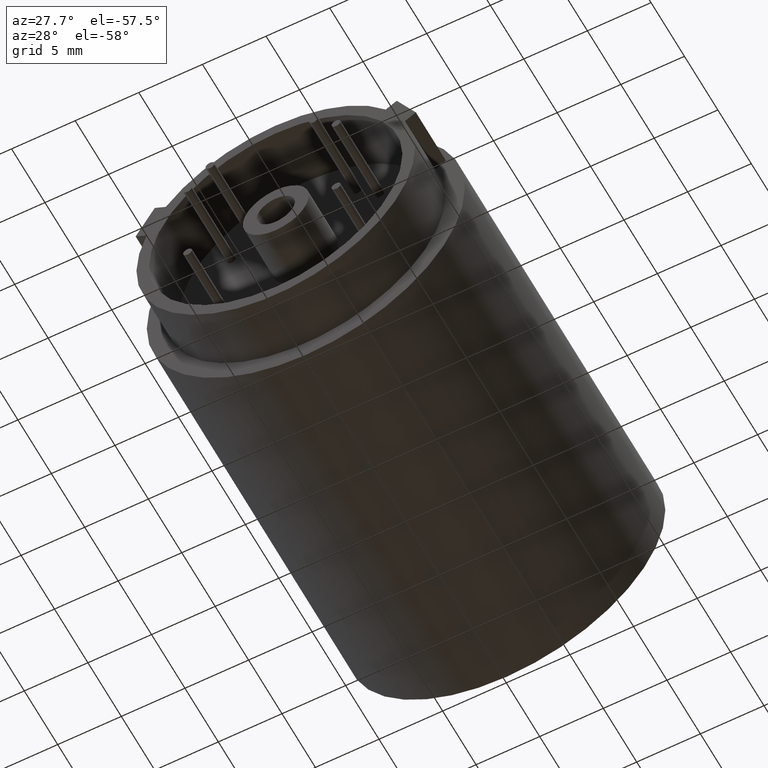
[diagram: clean part render]
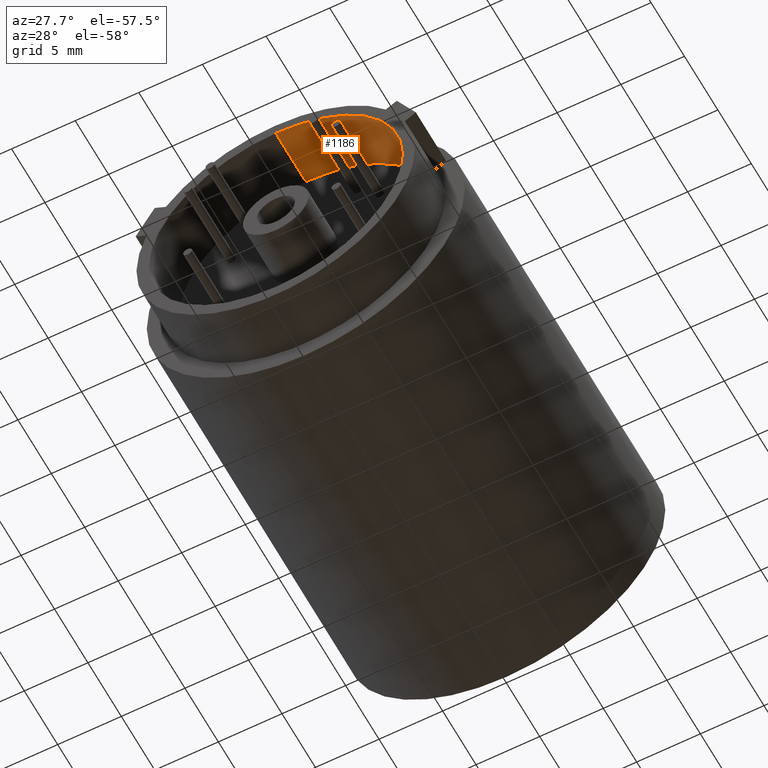
[diagram: same view with one face highlighted and labeled with its STEP entity id]
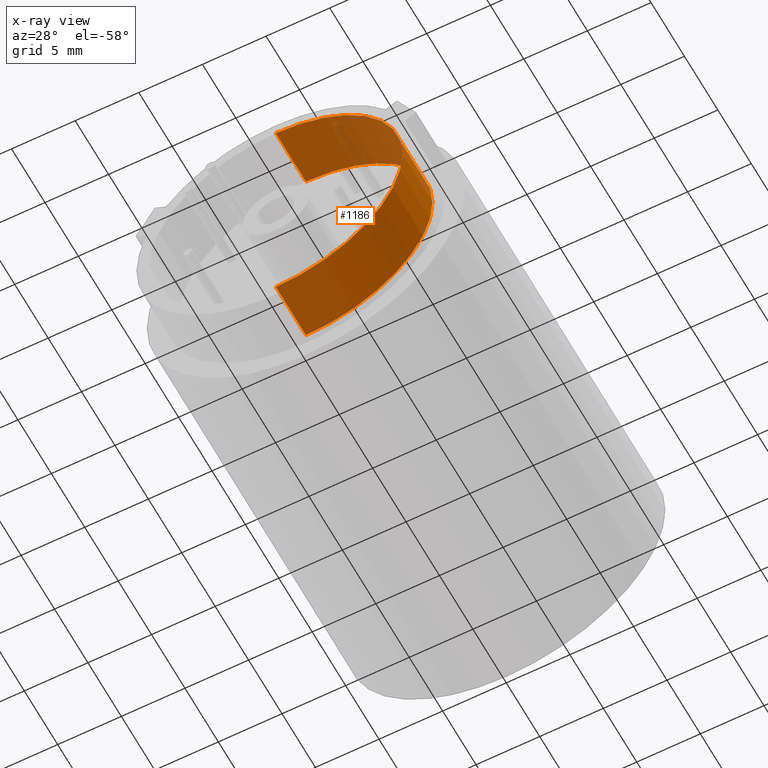
[diagram: x-ray of the same camera — body ghosted, the highlighted face saturated]
A machine part, auxiliary view. The second image highlights one B-rep face of the part: STEP entity #1186.
The next image is the same camera in x-ray: the body ghosted, the highlighted face saturated — about 3% of this face is hidden behind the body in this view.
In plain terms, the highlighted cylindrical surface (partial cylindrical patch) has radius 9.95 mm, axis along (-0, -1, -0).
Its self-contained STEP definition (entity closure, byte-faithful):
#62 = CARTESIAN_POINT ( 'NONE',  ( 1.218523565151616600E-015, 28.14284989122459300, 9.950000000000001100 ) ) ;
#140 = CARTESIAN_POINT ( 'NONE',  ( 0.0000000000000000000, 0.0000000000000000000, 0.0000000000000000000 ) ) ;
#144 = CARTESIAN_POINT ( 'NONE',  ( 0.0000000000000000000, -4.500000000000003600, 0.0000000000000000000 ) ) ;
#210 = EDGE_CURVE ( 'NONE', #645, #1582, #1835, .T. ) ;
#212 = VECTOR ( 'NONE', #1314, 1000.000000000000000 ) ;
#219 = LINE ( 'NONE', #414, #1883 ) ;
#224 = VERTEX_POINT ( 'NONE', #1854 ) ;
#303 = DIRECTION ( 'NONE',  ( 0.0000000000000000000, 0.0000000000000000000, 1.000000000000000000 ) ) ;
#308 = DIRECTION ( 'NONE',  ( 0.0000000000000000000, 0.0000000000000000000, -1.000000000000000000 ) ) ;
#331 = ORIENTED_EDGE ( 'NONE', *, *, #572, .T. ) ;
#414 = CARTESIAN_POINT ( 'NONE',  ( 0.0000000000000000000, 28.14284989122459300, -9.950000000000001100 ) ) ;
#424 = CARTESIAN_POINT ( 'NONE',  ( 1.218523565151616600E-015, 0.0000000000000000000, 9.950000000000001100 ) ) ;
#517 = AXIS2_PLACEMENT_3D ( 'NONE', #144, #1247, #308 ) ;
#555 = ORIENTED_EDGE ( 'NONE', *, *, #1230, .F. ) ;
#572 = EDGE_CURVE ( 'NONE', #645, #994, #219, .T. ) ;
#645 = VERTEX_POINT ( 'NONE', #887 ) ;
#764 = EDGE_CURVE ( 'NONE', #994, #224, #967, .T. ) ;
#809 = AXIS2_PLACEMENT_3D ( 'NONE', #140, #1243, #303 ) ;
#842 = CARTESIAN_POINT ( 'NONE',  ( 0.0000000000000000000, 28.14284989122459300, 0.0000000000000000000 ) ) ;
#887 = CARTESIAN_POINT ( 'NONE',  ( 0.0000000000000000000, 0.0000000000000000000, -9.950000000000001100 ) ) ;
#967 = CIRCLE ( 'NONE', #517, 9.950000000000001100 ) ;
#994 = VERTEX_POINT ( 'NONE', #1457 ) ;
#1151 = FACE_OUTER_BOUND ( 'NONE', #1374, .T. ) ;
#1186 = ADVANCED_FACE ( 'NONE', ( #1151 ), #1926, .F. ) ;
#1230 = EDGE_CURVE ( 'NONE', #1582, #224, #1527, .T. ) ;
#1243 = DIRECTION ( 'NONE',  ( -0.0000000000000000000, -1.000000000000000000, -0.0000000000000000000 ) ) ;
#1247 = DIRECTION ( 'NONE',  ( 0.0000000000000000000, -1.000000000000000000, 0.0000000000000000000 ) ) ;
#1314 = DIRECTION ( 'NONE',  ( -0.0000000000000000000, -1.000000000000000000, -0.0000000000000000000 ) ) ;
#1374 = EDGE_LOOP ( 'NONE', ( #555, #1553, #331, #1387 ) ) ;
#1387 = ORIENTED_EDGE ( 'NONE', *, *, #764, .T. ) ;
#1457 = CARTESIAN_POINT ( 'NONE',  ( 0.0000000000000000000, -4.500000000000003600, -9.950000000000001100 ) ) ;
#1458 = DIRECTION ( 'NONE',  ( -0.0000000000000000000, -1.000000000000000000, -0.0000000000000000000 ) ) ;
#1500 = DIRECTION ( 'NONE',  ( -0.0000000000000000000, -1.000000000000000000, -0.0000000000000000000 ) ) ;
#1527 = LINE ( 'NONE', #62, #212 ) ;
#1553 = ORIENTED_EDGE ( 'NONE', *, *, #210, .F. ) ;
#1582 = VERTEX_POINT ( 'NONE', #424 ) ;
#1622 = DIRECTION ( 'NONE',  ( 0.0000000000000000000, 0.0000000000000000000, -1.000000000000000000 ) ) ;
#1632 = AXIS2_PLACEMENT_3D ( 'NONE', #842, #1458, #1622 ) ;
#1835 = CIRCLE ( 'NONE', #809, 9.950000000000001100 ) ;
#1854 = CARTESIAN_POINT ( 'NONE',  ( 1.218523565151616600E-015, -4.500000000000003600, 9.950000000000001100 ) ) ;
#1883 = VECTOR ( 'NONE', #1500, 1000.000000000000000 ) ;
#1926 = CYLINDRICAL_SURFACE ( 'NONE', #1632, 9.950000000000001100 ) ;